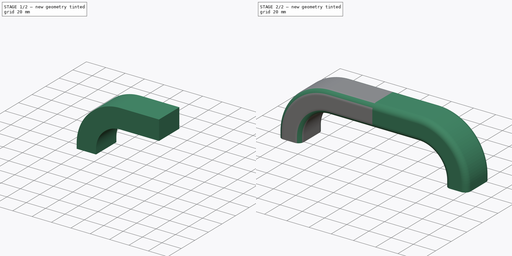
[diagram: build sequence overview — one tinted view per stage of 2, left to right]
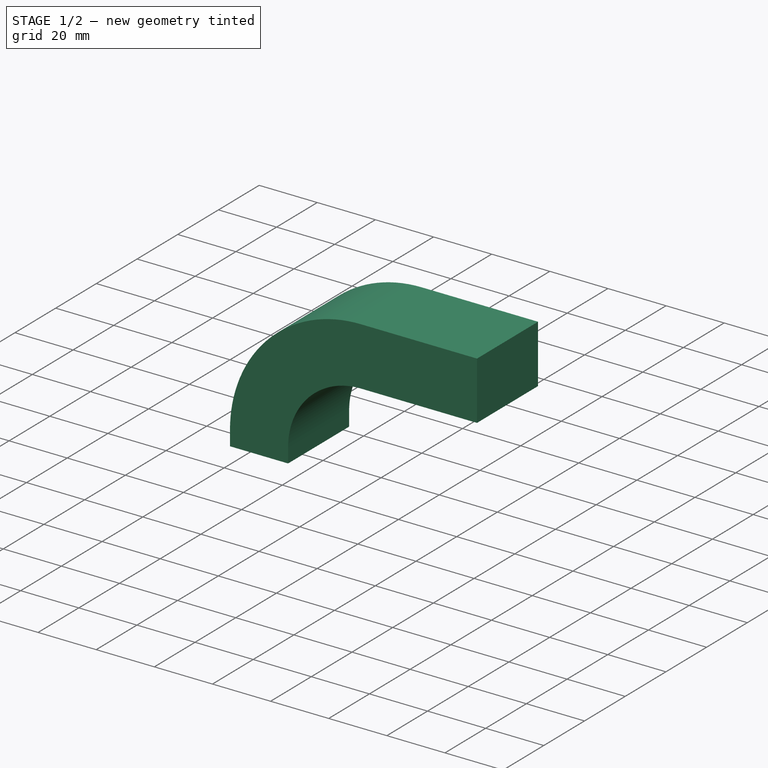
[diagram: stage 1 of 2 — iso view after this stage's code; geometry added in this stage tinted green]
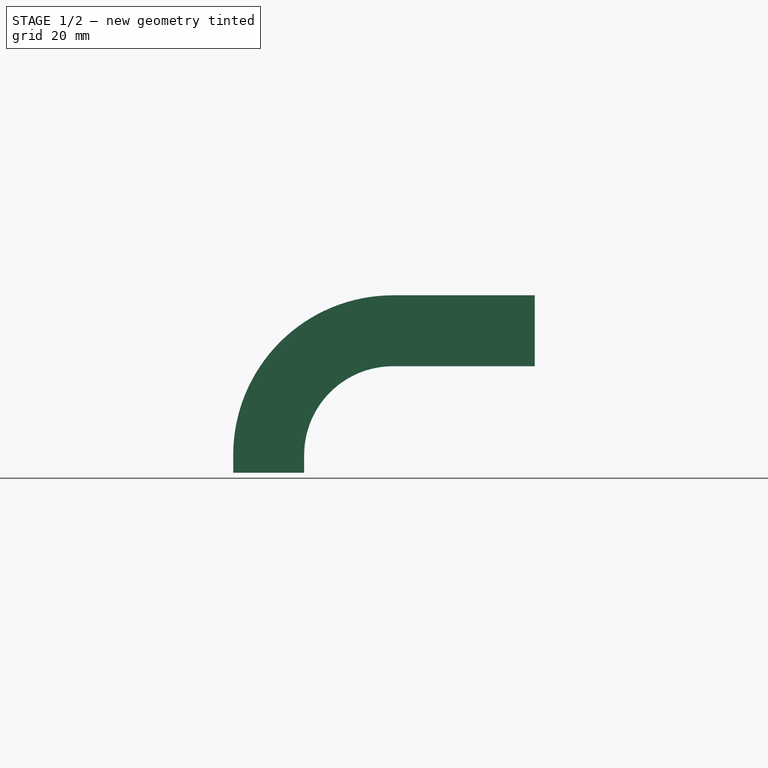
[diagram: stage 1 of 2 — front view after this stage's code; geometry added in this stage tinted green]
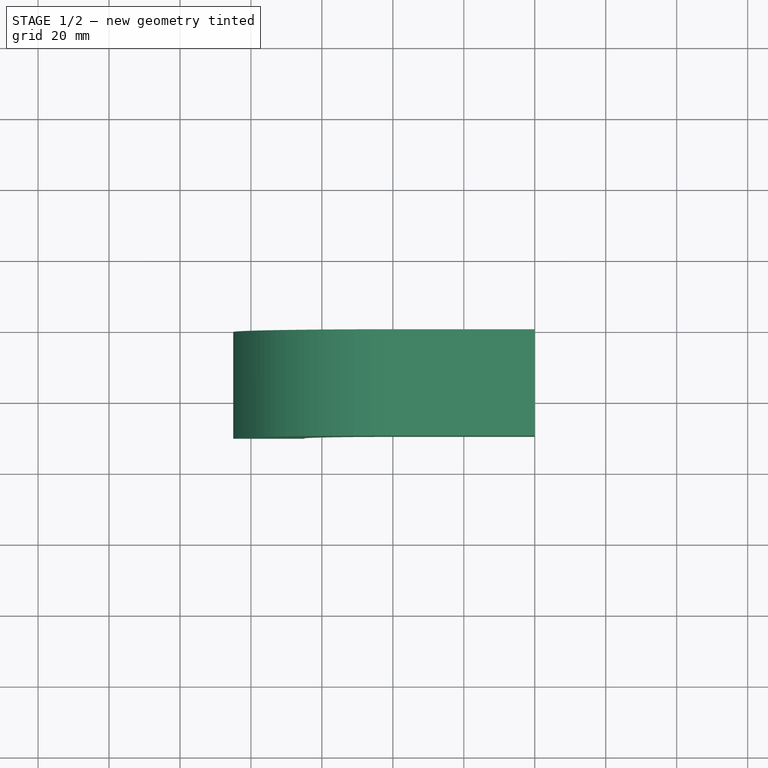
[diagram: stage 1 of 2 — top view after this stage's code; geometry added in this stage tinted green]
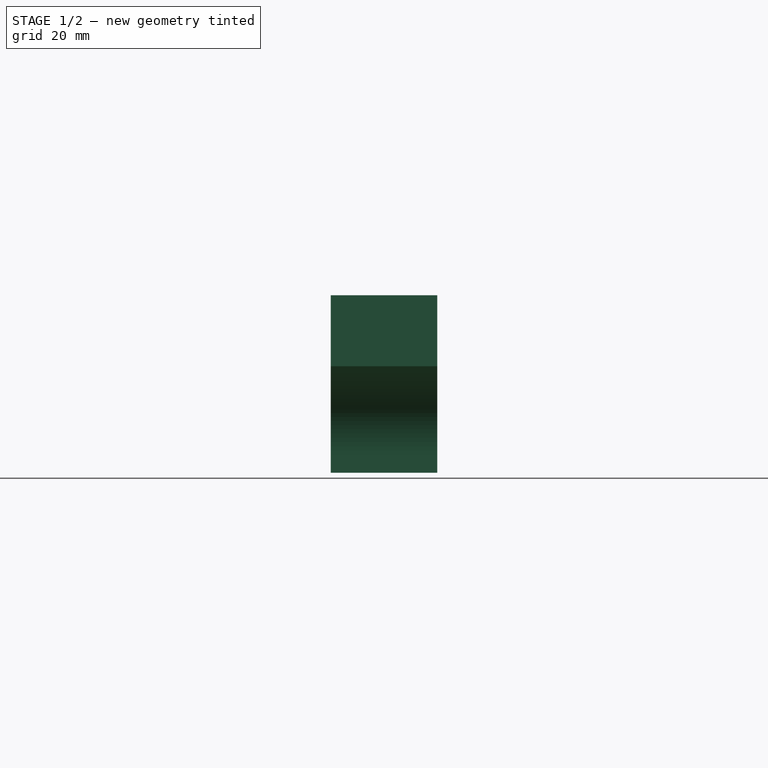
[diagram: stage 1 of 2 — right view after this stage's code; geometry added in this stage tinted green]
FCSTD DOCUMENT  (FreeCAD 2023.521R14555 (Git shallow))
Label: Handle_resin
License: All rights reserved
objects: Sketcher::SketchObject×2, PartDesign::Pad×1, PartDesign::Pocket×1, PartDesign::Fillet×1, PartDesign::Mirrored×1, PartDesign::Body×1
note: 17 computed .brp shape members not serialized (recipe doc carries the construction recipe); baked Part::Feature solids carry a one-line shape summary decoded from their .brp

FEATURE [Sketcher::SketchObject] Sketch
  ArcFitTolerance = 1e-06
  AttachmentSupport = -> [XZ_Plane]
  ExternalBSplineMaxDegree = 5
  ExternalBSplineTolerance = 0.0001
  FullyConstrained = true
  InternalTolerance = 1e-06
  InvalidShape = false
  MakeInternals = false
  MapMode = 5
  Placement = pos=(0,0,0) rot=(1,0,0;1.5708rad)
  Support = -> [XZ_Plane]
  TreeRank = 11
  ValidateShape = false
  sketch-geometry (8):
    g0: LineSegment StartX=-65 StartY=0 StartZ=0 EndX=-65 EndY=5 EndZ=0
    g1: LineSegment StartX=-40 StartY=30 StartZ=0 EndX=0 EndY=30 EndZ=0
    g2: LineSegment StartX=0 StartY=50 StartZ=0 EndX=-40 EndY=50 EndZ=0
    g3: LineSegment StartX=-85 StartY=5 StartZ=0 EndX=-85 EndY=0 EndZ=0
    g4: LineSegment StartX=-85 StartY=0 StartZ=0 EndX=-65 EndY=0 EndZ=0
    g5: ArcOfCircle CenterX=-40 CenterY=5 CenterZ=0 NormalX=0 NormalY=0 NormalZ=1 AngleXU=0 Radius=45 StartAngle=1.5708 EndAngle=3.14159
    g6: ArcOfCircle CenterX=-40 CenterY=5 CenterZ=0 NormalX=0 NormalY=0 NormalZ=1 AngleXU=0 Radius=25 StartAngle=1.5708 EndAngle=3.14159
    g7: LineSegment StartX=0 StartY=50 StartZ=0 EndX=0 EndY=30 EndZ=0
  constraints (21):
    c: Horizontal(g4)
    c: Coincident(g0,g4)
    c: Coincident(g3,g4)
    c: Horizontal(g0,g-1)
    c: Tangent(g3,g5) = -1.5708
    c: Tangent(g2,g5) = -1.5708
    c: Tangent(g1,g6) = 1.5708
    c: Tangent(g0,g6) = 1.5708
    c: Horizontal(g1)
    c: Horizontal(g2)
    c: Vertical(g2,g1)
    c: Vertical(g1,g-1)
    c: Coincident(g7,g2)
    c: Coincident(g7,g1)
    c: DistanceY(g7,g7) = 20
    c: DistanceX(g1,g1) = 40
    c: DistanceY(g-1,g1) = 30
    c: Coincident(g5,g6)
    c: Vertical(g0)
    c: Vertical(g3)
    c: DistanceY(g5,g1) = 25
FEATURE [PartDesign::Pad] Pad
  AddSubType = 0
  AlongSketchNormal = false
  AutoTaperInnerAngle = true
  CheckUpToFaceLimits = true
  ClaimChildren = false
  Direction = (0,-1,2e-16)
  Fit = 0
  FitJoin = 0
  InnerFit = 0
  InnerFitJoin = 0
  InvalidShape = false
  Length = 30
  Length2 = 10
  Linearize = true
  NewSolid = false
  Profile = -> Sketch
  ReferenceAxis = -> Sketch [N_Axis]
  Suppress = false
  TaperInnerAngle = 0
  TaperInnerAngleRev = 0
  TreeRank = 12
  Type = 0
  ValidateShape = true
  _ProfileBasedVersion = 1
FEATURE [Sketcher::SketchObject] Sketch001
  ArcFitTolerance = 1e-06
  AttachmentSupport = -> [Pad]
  ExternalBSplineMaxDegree = 5
  ExternalBSplineTolerance = 0.0001
  ExternalGeometry = -> [Pad]
  FullyConstrained = true
  InternalTolerance = 1e-06
  InvalidShape = false
  MakeInternals = false
  MapMode = 5
  Placement = pos=(0,0,0) rot=(1,0,0;3.14159rad)
  Support = -> [Pad]
  TreeRank = 13
  ValidateShape = false
  sketch-geometry (3):
    g0: Circle CenterX=-75 CenterY=24 CenterZ=0 NormalX=0 NormalY=0 NormalZ=1 AngleXU=0 Radius=3
    g1: Circle CenterX=-75 CenterY=6 CenterZ=0 NormalX=0 NormalY=0 NormalZ=1 AngleXU=0 Radius=3
    g2: GeomPoint [constr] X=-75 Y=30 Z=0
  constraints (7):
    c: Vertical(g0,g1)
    c: Equal(g0,g1)
    c: Symmetric(g-3,g-3,g2)
    c: Vertical(g2,g0)
    c: Diameter(g0) = 6
    c: DistanceY(g-4,g1) = 6
    c: DistanceY(g0,g-3) = 6
FEATURE [PartDesign::Pocket] Pocket
  AddSubType = 1
  AlongSketchNormal = false
  AutoTaperInnerAngle = true
  BaseFeature = -> Pad
  CheckUpToFaceLimits = true
  ClaimChildren = false
  Direction = (0,2e-16,1)
  Fit = 0
  FitJoin = 0
  InnerFit = 0
  InnerFitJoin = 0
  InvalidShape = false
  Length = 6
  Length2 = 10
  Linearize = true
  NewSolid = false
  Profile = -> Sketch001
  ReferenceAxis = -> Sketch001 [N_Axis]
  Suppress = false
  TaperInnerAngle = 0
  TaperInnerAngleRev = 0
  TreeRank = 14
  Type = 0
  ValidateShape = true
  _ProfileBasedVersion = 1
  _Version = 1
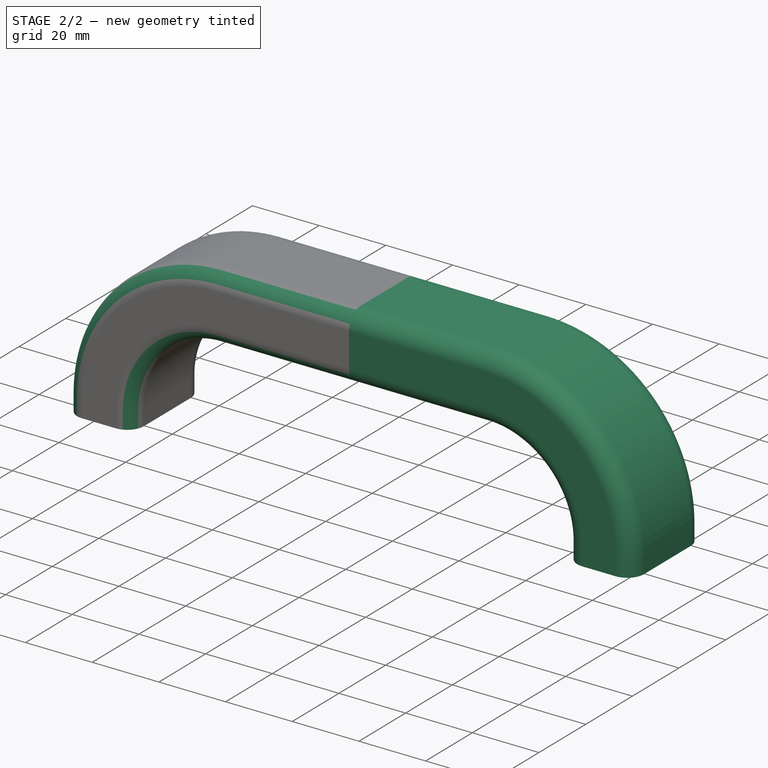
[diagram: stage 2 of 2 — iso view after this stage's code; geometry added in this stage tinted green]
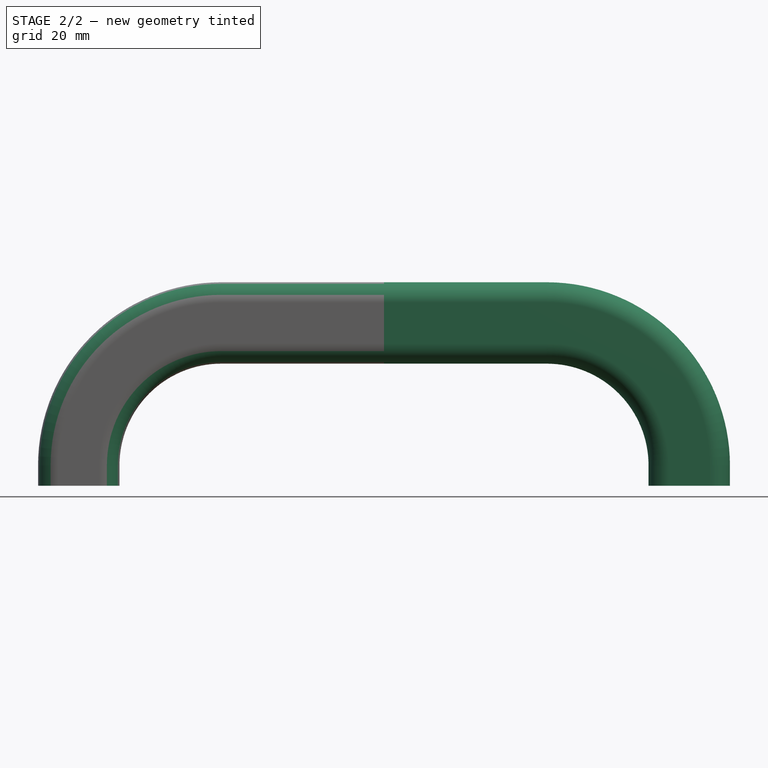
[diagram: stage 2 of 2 — front view after this stage's code; geometry added in this stage tinted green]
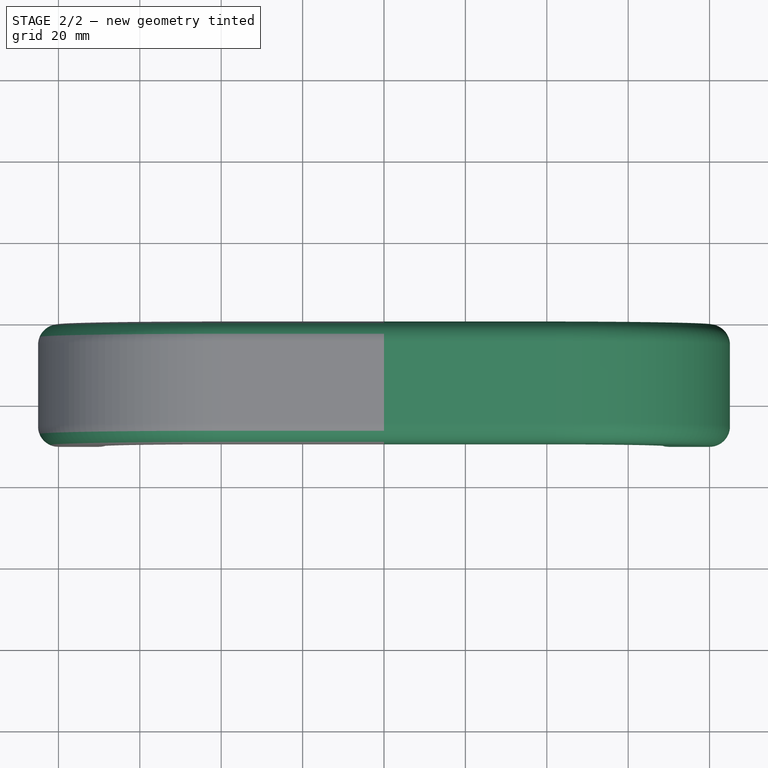
[diagram: stage 2 of 2 — top view after this stage's code; geometry added in this stage tinted green]
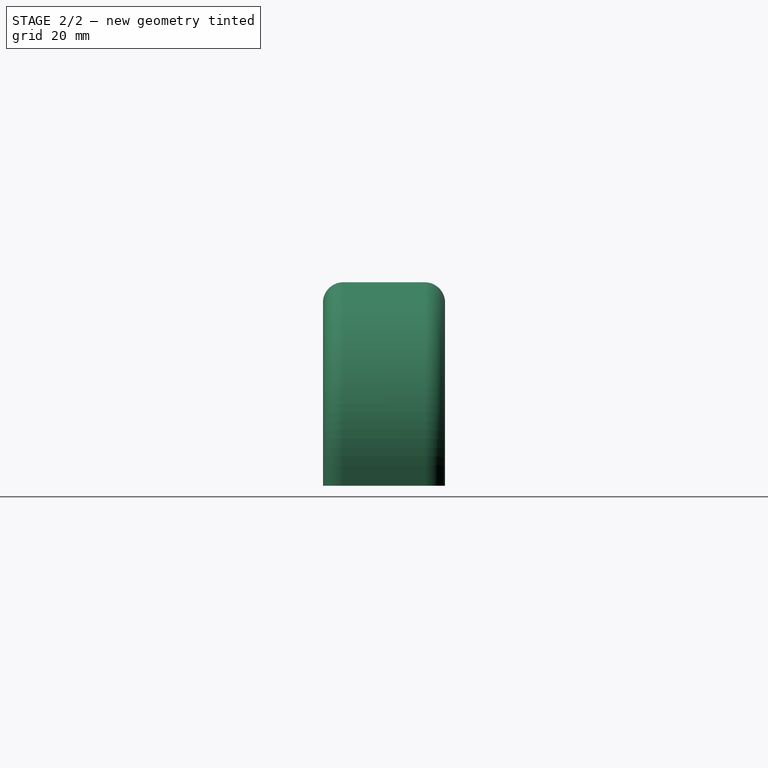
[diagram: stage 2 of 2 — right view after this stage's code; geometry added in this stage tinted green]
FEATURE [PartDesign::Fillet] Fillet
  AddSubType = 0
  Base = -> Pocket [Edge20,Edge4,Edge3,Edge15]
  BaseFeature = -> Pocket
  InvalidShape = false
  NewSolid = false
  Radius = 5
  Refine = true
  SupportTransform = false
  Suppress = false
  TreeRank = 15
  UseAllEdges = false
  ValidateShape = true
FEATURE [PartDesign::Mirrored] Mirrored
  AddSubType = 0
  BaseFeature = -> Fillet
  CopyShape = false
  InvalidShape = false
  MirrorPlane = -> YZ_Plane
  NewSolid = false
  OriginalSubs = -> [Pad,Pocket,Fillet]
  Originals = -> [Pad,Pocket,Fillet]
  ParallelTransform = true
  SubTransform = true
  Suppress = false
  TreeRank = 16
  ValidateShape = true
  _Version = 3
FEATURE [PartDesign::Body] Body
  AutoGroupSolids = false
  ClaimAllChildren = false
  ExportMode = 0
  Group = -> [Sketch,Pad,Sketch001,Pocket,Fillet,Mirrored]
  InvalidShape = false
  Origin = -> Origin
  Tip = -> Mirrored
  TreeRank = 10
  ValidateShape = false
  _ExportChildren = -> [Pad,Pocket,Fillet,Mirrored]
  _GroupVersion = 1
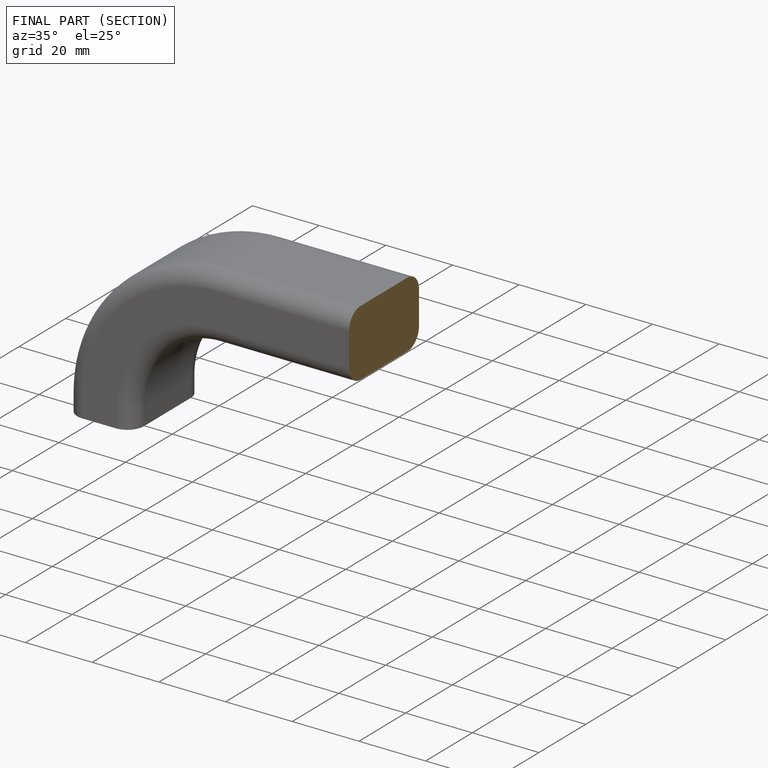
[diagram: finished part — half-section view (interior)]
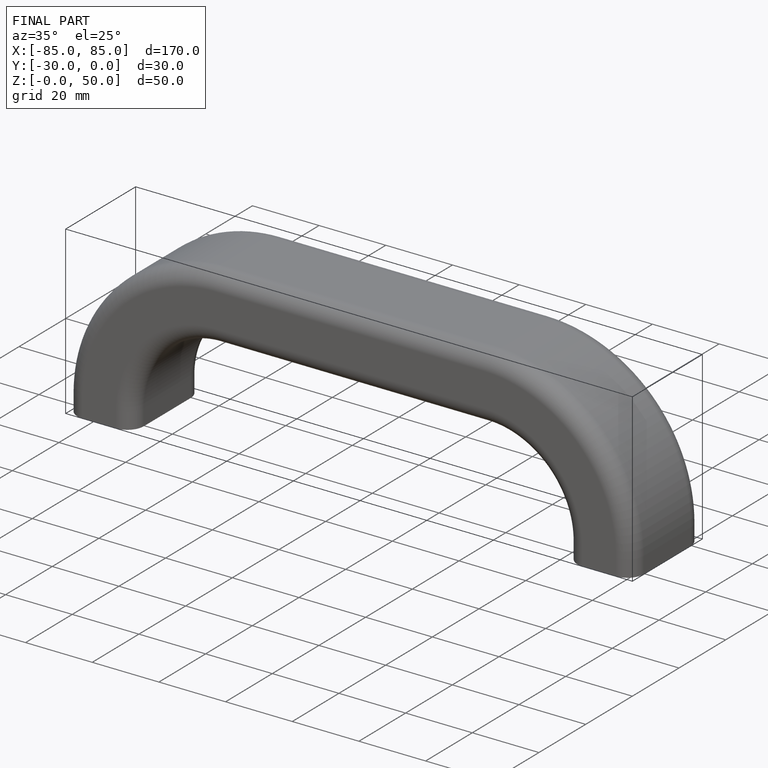
[diagram: finished part — iso view with bounding-box wireframe]
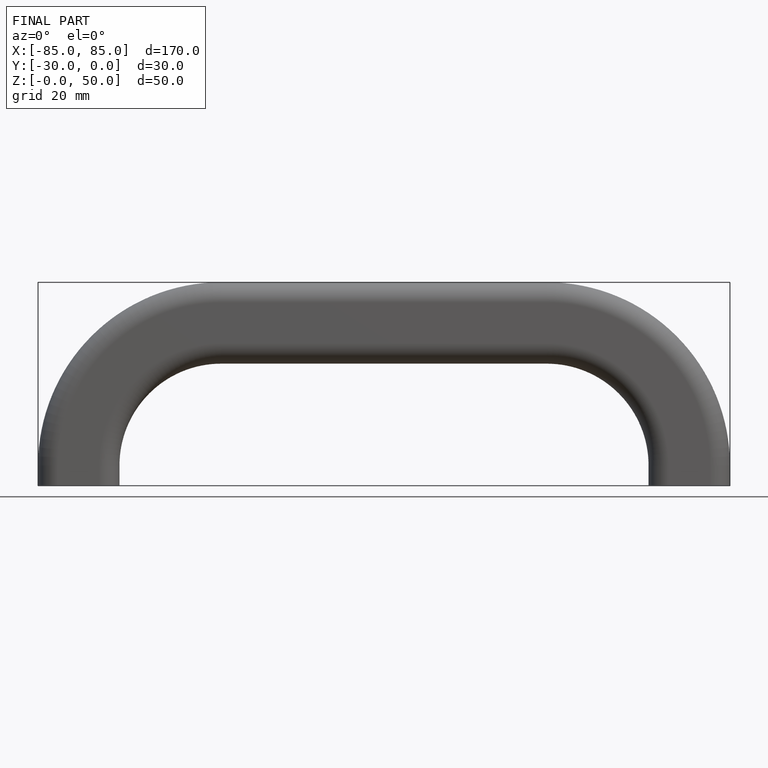
[diagram: finished part — front view with bounding-box wireframe]
